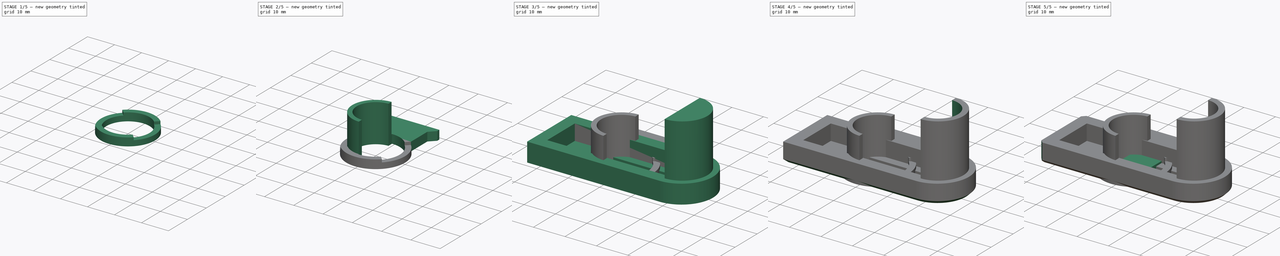
[diagram: build sequence overview — one tinted view per stage of 5, left to right]
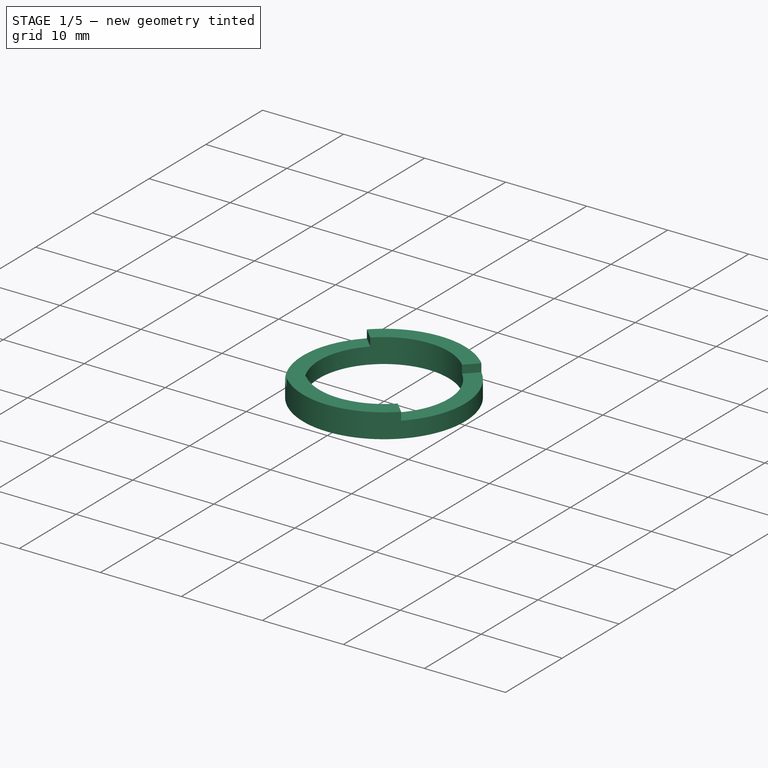
[diagram: stage 1 of 5 — iso view after this stage's code; geometry added in this stage tinted green]
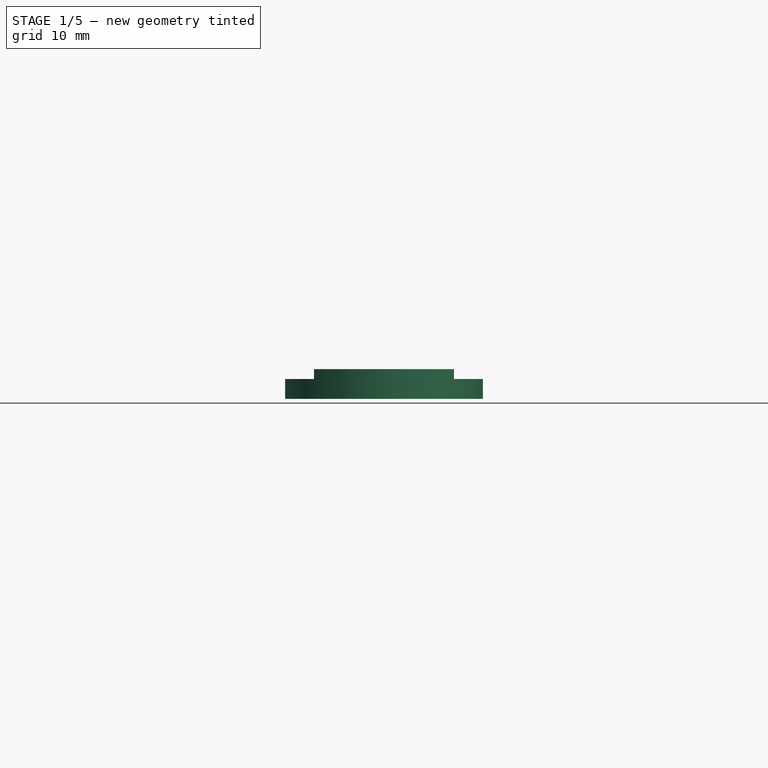
[diagram: stage 1 of 5 — front view after this stage's code; geometry added in this stage tinted green]
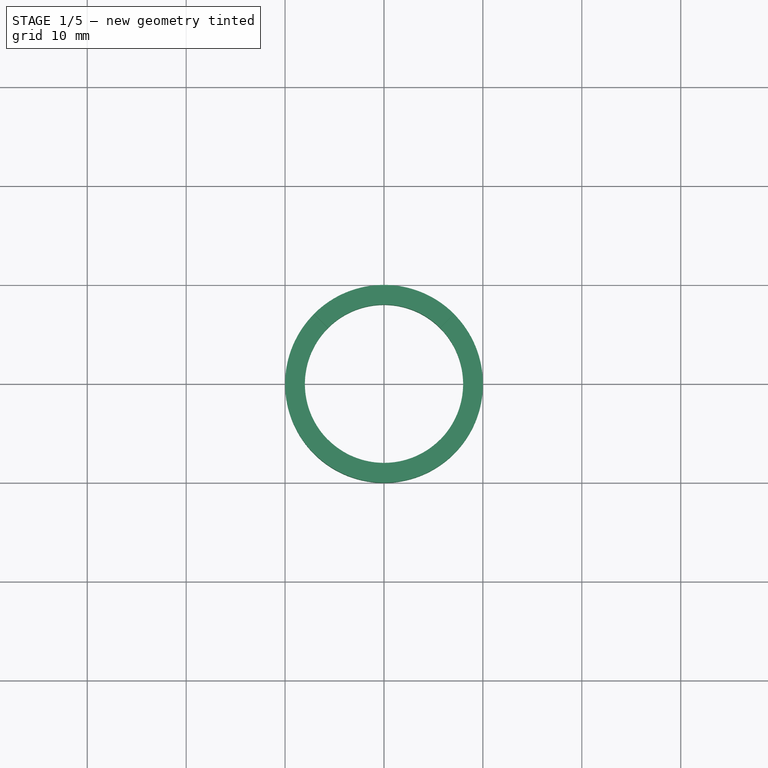
[diagram: stage 1 of 5 — top view after this stage's code; geometry added in this stage tinted green]
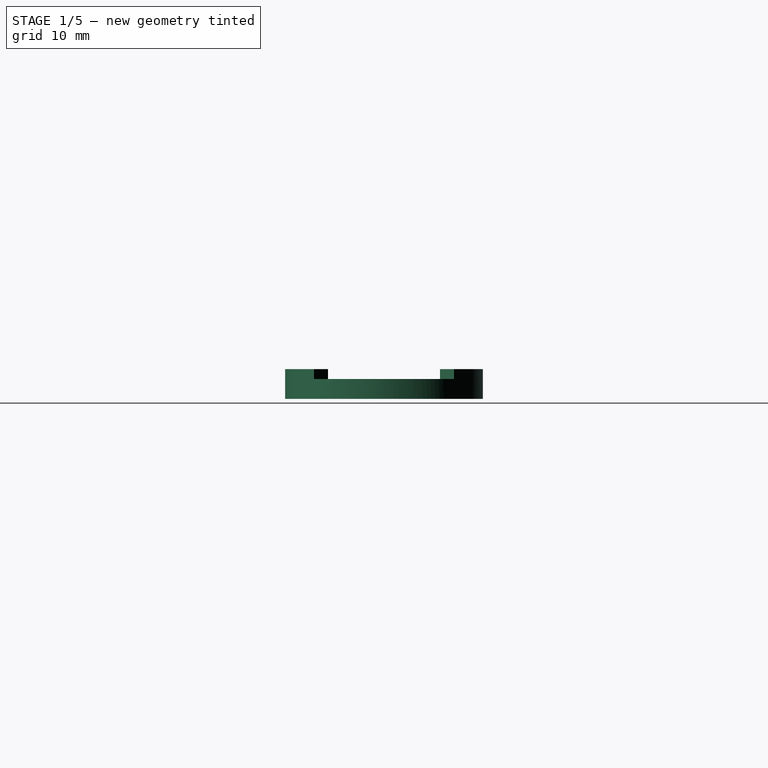
[diagram: stage 1 of 5 — right view after this stage's code; geometry added in this stage tinted green]
FCSTD DOCUMENT  (FreeCAD 1.1R38728 (Git))
Label: AuxPower1U OLED
License: All rights reserved
LicenseURL: https://en.wikipedia.org/wiki/All_rights_reserved
objects: Sketcher::SketchObject×13, PartDesign::Pad×7, PartDesign::Pocket×6, PartDesign::Body×4, PartDesign::Chamfer×3
note: 78 computed .brp shape members not serialized (recipe doc carries the construction recipe); baked Part::Feature solids carry a one-line shape summary decoded from their .brp

FEATURE [PartDesign::Body] Body001  label="Brace-Wide"
  AllowCompound = false
  Group = -> [Sketch002,Pad001]
  Origin = -> Origin001
  Placement = pos=(20,20,0) rot=(0,0,1;0rad)
  Tip = -> Pad001
FEATURE [Sketcher::SketchObject] Sketch003  label="RingBaseSketch"
  ArcFitTolerance = 0
  AttachmentSupport = -> [XY_Plane003]
  FullyConstrained = true
  MakeInternals = false
  MapMode = 5
  sketch-geometry (1):
    g0: Circle CenterX=0 CenterY=0 CenterZ=0 NormalX=0 NormalY=0 NormalZ=1 AngleXU=0 Radius=10
  constraints (2):
    c: Coincident(g0,g-1)
    c: Diameter(g0) = 20
FEATURE [PartDesign::Pad] Pad002  label="RingBasePad"
  Direction = (0,0,1)
  Length = 3
  Length2 = 10
  Profile = -> Sketch003
  ReferenceAxis = -> Sketch003 [N_Axis]
  Refine = true
  Suppressed = false
  Type = 0
FEATURE [Sketcher::SketchObject] Sketch004  label="RingClampCutoutSketch"
  ArcFitTolerance = 0
  AttachmentSupport = -> [Pad002]
  FullyConstrained = true
  MakeInternals = false
  MapMode = 5
  Placement = pos=(0,0,3) rot=(0,0,1;0rad)
  sketch-geometry (8):
    g0: LineSegment StartX=0 StartY=0 StartZ=0 EndX=7.07107 EndY=7.07107 EndZ=0
    g1: LineSegment StartX=0 StartY=0 StartZ=0 EndX=7.07107 EndY=-7.07107 EndZ=0
    g2: LineSegment [constr] StartX=0 StartY=0 StartZ=0 EndX=10 EndY=0 EndZ=0
    g3: ArcOfCircle CenterX=4.382e-13 CenterY=-4.405e-13 CenterZ=0 NormalX=0 NormalY=0 NormalZ=1 AngleXU=0 Radius=10 StartAngle=5.49779 EndAngle=7.06858
    g4: ArcOfCircle CenterX=0 CenterY=5.099e-13 CenterZ=0 NormalX=0 NormalY=0 NormalZ=1 AngleXU=0 Radius=10 StartAngle=2.35619 EndAngle=3.92699
    g5: LineSegment [constr] StartX=0 StartY=0 StartZ=0 EndX=-10 EndY=0 EndZ=0
    g6: LineSegment StartX=4.382e-13 StartY=-4.405e-13 StartZ=0 EndX=-7.07107 EndY=7.07107 EndZ=0
    g7: LineSegment StartX=0 StartY=0 StartZ=0 EndX=-7.07107 EndY=-7.07107 EndZ=0
  constraints (26):
    c: Angle(g0) = 0.785398
    c: Angle(g1) = -0.785398
    c: Horizontal(g0,g1)
    c: Horizontal(g1,g-1)
    c: Vertical(g0,g1)
    c: Distance(g1,g1) = 10
    c: Distance(g0,g0) = 10
    c: Vertical(g0,g-1)
    c: Distance(g2) = 10
    c: Coincident(g2,g0)
    c: PointOnObject(g2,g-1)
    c: Coincident(g3,g0)
    c: Coincident(g3,g1)
    c: PointOnObject(g2,g3)
    c: Coincident(g5,g1)
    c: PointOnObject(g5,g-1)
    c: Equal(g5,g2)
    c: Coincident(g6,g3)
    c: Equal(g6,g0)
    c: Angle(g6) = 2.35619
    c: Coincident(g4,g6)
    c: Coincident(g7,g0)
    c: Angle(g7) = -2.35619
    c: Equal(g7,g6)
    c: Coincident(g7,g4)
    c: Vertical(g4,g0)
FEATURE [PartDesign::Pocket] Pocket  label="RingClampCutoutPocket"
  BaseFeature = -> Pad002
  Direction = (0,0,-1)
  Length = 1
  Length2 = 5
  Profile = -> Sketch004
  ReferenceAxis = -> Sketch004 [N_Axis]
  Refine = true
  Suppressed = false
  Type = 0
FEATURE [Sketcher::SketchObject] Sketch005  label="RingHoleSketch"
  ArcFitTolerance = 0
  AttachmentSupport = -> [Pocket]
  FullyConstrained = true
  MakeInternals = false
  MapMode = 5
  Placement = pos=(0,0,3) rot=(0,0,1;0rad)
  sketch-geometry (1):
    g0: Circle CenterX=0 CenterY=0 CenterZ=0 NormalX=0 NormalY=0 NormalZ=1 AngleXU=0 Radius=8
  constraints (2):
    c: Coincident(g0,g-1)
    c: Diameter(g0) = 16
FEATURE [PartDesign::Pocket] Pocket001  label="RingHolePocket"
  BaseFeature = -> Pocket
  Direction = (0,0,-1)
  Length = 5
  Length2 = 5
  Profile = -> Sketch005
  ReferenceAxis = -> Sketch005 [N_Axis]
  Refine = true
  Suppressed = false
  Type = 0
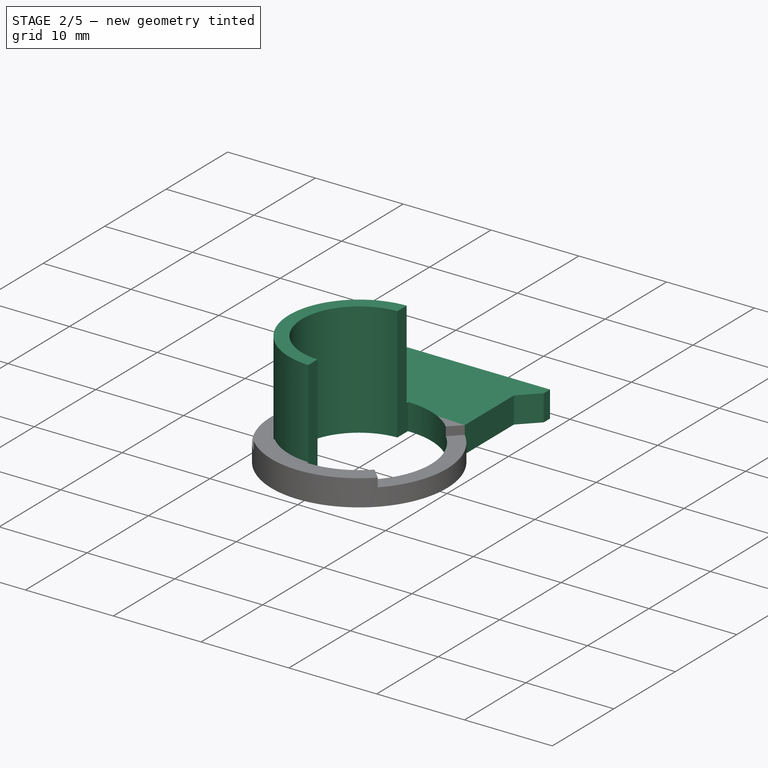
[diagram: stage 2 of 5 — iso view after this stage's code; geometry added in this stage tinted green]
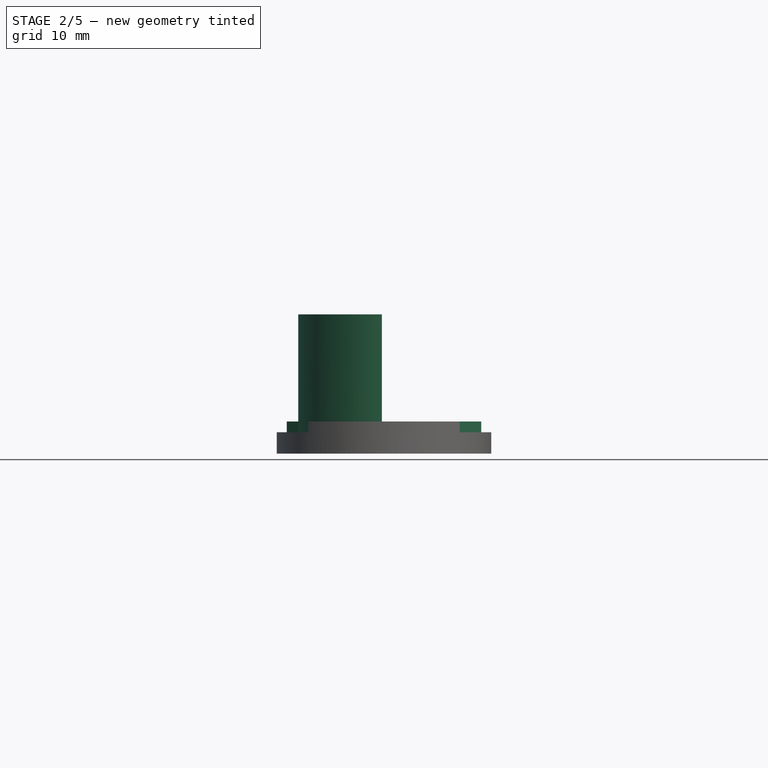
[diagram: stage 2 of 5 — front view after this stage's code; geometry added in this stage tinted green]
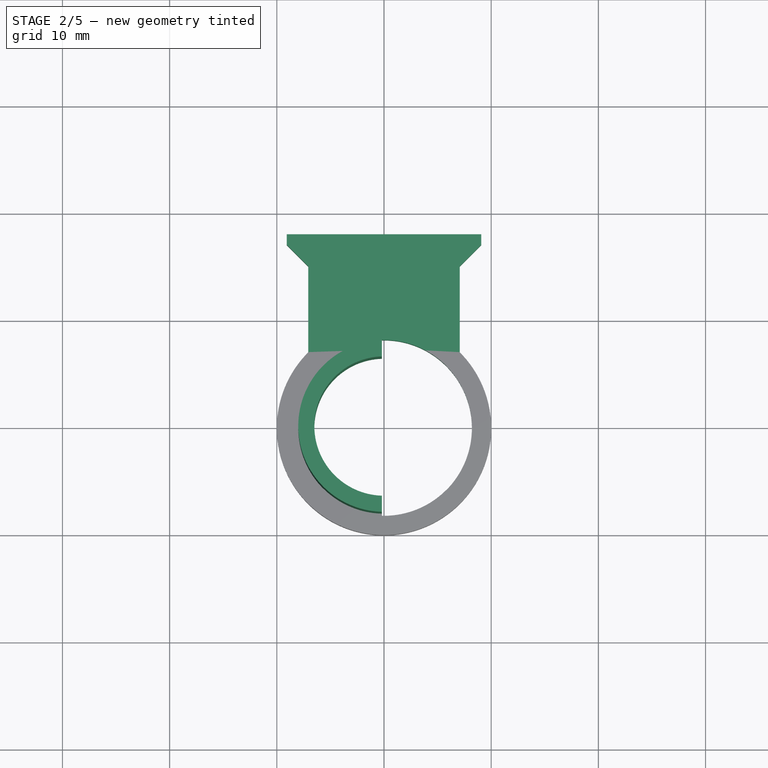
[diagram: stage 2 of 5 — top view after this stage's code; geometry added in this stage tinted green]
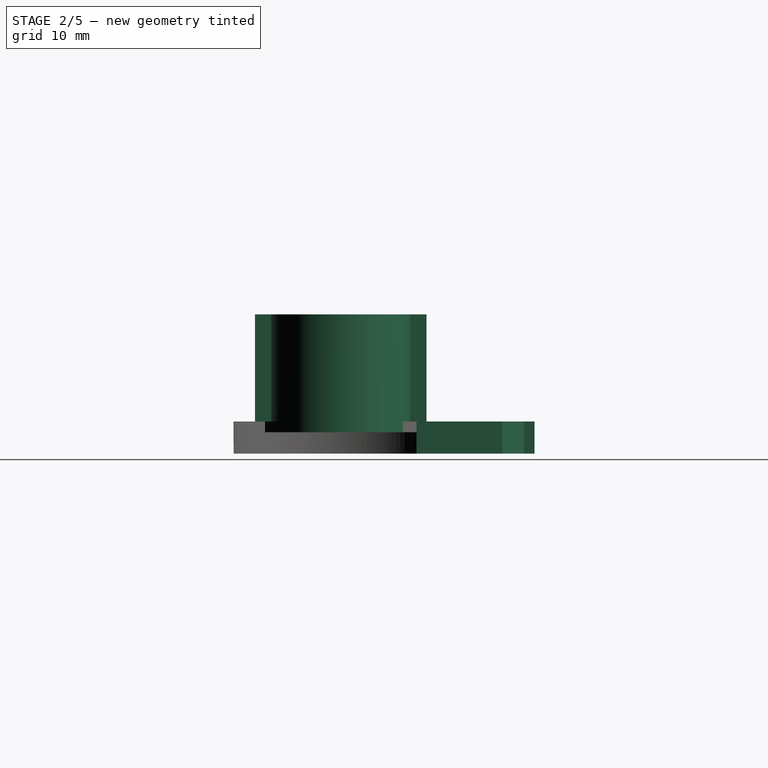
[diagram: stage 2 of 5 — right view after this stage's code; geometry added in this stage tinted green]
FEATURE [Sketcher::SketchObject] Sketch006  label="RingExtensionSketch"
  ArcFitTolerance = 0
  AttachmentSupport = -> [XY_Plane003]
  FullyConstrained = true
  MakeInternals = false
  MapMode = 5
  sketch-geometry (8):
    g0: LineSegment [constr] StartX=-9e-16 StartY=0 StartZ=0 EndX=-6.5 EndY=0 EndZ=0
    g1: LineSegment StartX=-9e-16 StartY=6.5 StartZ=0 EndX=-9e-16 EndY=8 EndZ=0
    g2: LineSegment StartX=-9e-16 StartY=-6.5 StartZ=0 EndX=-9e-16 EndY=-8 EndZ=0
    g3: LineSegment [constr] StartX=-6.5 StartY=0 StartZ=0 EndX=-8 EndY=0 EndZ=0
    g4: LineSegment [constr] StartX=-9e-16 StartY=0 StartZ=0 EndX=-9e-16 EndY=-6.5 EndZ=0
    g5: LineSegment [constr] StartX=-9e-16 StartY=6.5 StartZ=0 EndX=-9e-16 EndY=0 EndZ=0
    g6: ArcOfCircle CenterX=3e-16 CenterY=1e-16 CenterZ=0 NormalX=0 NormalY=0 NormalZ=1 AngleXU=0 Radius=6.5 StartAngle=1.5708 EndAngle=4.71239
    g7: ArcOfCircle CenterX=-2.14e-13 CenterY=-2.129e-13 CenterZ=0 NormalX=0 NormalY=0 NormalZ=1 AngleXU=0 Radius=8 StartAngle=1.5708 EndAngle=4.71239
  constraints (26):
    c: Horizontal(g0)
    c: Distance(g2) = 1.5
    c: PointOnObject(g2,g-2)
    c: Vertical(g2)
    c: DistanceX(g0,g0) = 6.5
    c: DistanceX(g3,g3) = 1.5
    c: Coincident(g4,g0)
    c: Coincident(g4,g2)
    c: Vertical(g4)
    c: DistanceY(g4,g4) = 6.5
    c: DistanceY(g1,g1) = 1.5
    c: Horizontal(g3)
    c: Vertical(g0,g3)
    c: Horizontal(g4,g-1)
    c: Distance(g5) = 6.5
    c: Coincident(g5,g1)
    c: Coincident(g5,g0)
    c: Vertical(g5)
    c: Vertical(g1,g1)
    c: Horizontal(g0,g3)
    c: Coincident(g6,g2)
    c: Coincident(g6,g1)
    c: PointOnObject(g3,g6)
    c: Coincident(g7,g1)
    c: Coincident(g7,g2)
    c: PointOnObject(g3,g7)
FEATURE [PartDesign::Pad] Pad003  label="RingExtensionPad"
  BaseFeature = -> Pocket001
  Direction = (0,0,1)
  Length = 13
  Length2 = 10
  Profile = -> Sketch006
  ReferenceAxis = -> Sketch006 [N_Axis]
  Refine = true
  Suppressed = false
  Type = 0
FEATURE [Sketcher::SketchObject] Sketch007  label="RingTolerancesSketch"
  ArcFitTolerance = 0
  AttachmentSupport = -> [Pad003]
  FullyConstrained = true
  MakeInternals = false
  MapMode = 5
  Placement = pos=(0,0,13) rot=(0,0,1;0rad)
  sketch-geometry (6):
    g0: LineSegment [constr] StartX=1.8e-15 StartY=8.2 StartZ=0 EndX=1.8e-15 EndY=-8.2 EndZ=0
    g1: LineSegment [constr] StartX=0 StartY=0 StartZ=0 EndX=8.2 EndY=0 EndZ=0
    g2: ArcOfCircle CenterX=-7e-16 CenterY=-6e-16 CenterZ=0 NormalX=0 NormalY=0 NormalZ=1 AngleXU=0 Radius=8.2 StartAngle=4.71239 EndAngle=7.85398
    g3: LineSegment StartX=1.8e-15 StartY=8.2 StartZ=0 EndX=-0.2 EndY=8.2 EndZ=0
    g4: LineSegment StartX=1.8e-15 StartY=-8.2 StartZ=0 EndX=-0.2 EndY=-8.2 EndZ=0
    g5: LineSegment StartX=-0.2 StartY=-8.2 StartZ=0 EndX=-0.2 EndY=8.2 EndZ=0
  constraints (17):
    c: Distance(g0) = 16.4
    c: Vertical(g0)
    c: Symmetric(g0,g0,g-1)
    c: Distance(g1) = 8.2
    c: Coincident(g1,g-1)
    c: PointOnObject(g1,g-1)
    c: Coincident(g2,g0)
    c: Coincident(g2,g0)
    c: PointOnObject(g1,g2)
    c: Distance(g3) = 0.2
    c: Coincident(g3,g0)
    c: Horizontal(g3)
    c: Distance(g4) = 0.2
    c: Coincident(g4,g0)
    c: Horizontal(g4)
    c: Coincident(g5,g4)
    c: Coincident(g5,g3)
FEATURE [PartDesign::Pocket] Pocket002  label="RingTolerancesPocket"
  BaseFeature = -> Pad003
  Direction = (0,0,-1)
  Length = 20
  Length2 = 5
  Profile = -> Sketch007
  ReferenceAxis = -> Sketch007 [N_Axis]
  Refine = true
  Suppressed = false
  Type = 0
FEATURE [PartDesign::Body] Body002  label="Body"
  AllowCompound = false
  Group = -> [Sketch008,Sketch009,Pad004,Pocket003,Sketch010,Pocket004,Sketch011,Pad005,Sketch012,Pocket005,Chamfer,Chamfer001,Chamfer002]
  Origin = -> Origin002
  Tip = -> Chamfer002
FEATURE [Sketcher::SketchObject] Sketch013  label="RingStopperSketch"
  ArcFitTolerance = 1e-06
  AttachmentSupport = -> [XY_Plane003]
  ExternalGeometry = -> [Pad003]
  FullyConstrained = true
  MakeInternals = false
  MapMode = 5
  sketch-geometry (13):
    g0: LineSegment [constr] StartX=-7.07107 StartY=7.07107 StartZ=0 EndX=7.07107 EndY=7.07107 EndZ=0
    g1: LineSegment StartX=-7.07107 StartY=7.07107 StartZ=0 EndX=-7.07107 EndY=15.0711 EndZ=0
    g2: LineSegment StartX=7.07107 StartY=7.07107 StartZ=0 EndX=7.07107 EndY=15.0711 EndZ=0
    g3: LineSegment [constr] StartX=-7.07107 StartY=15.0711 StartZ=0 EndX=-7.07107 EndY=18.0711 EndZ=0
    g4: LineSegment [constr] StartX=7.07107 StartY=15.0711 StartZ=0 EndX=7.07107 EndY=18.0711 EndZ=0
    g5: LineSegment [constr] StartX=-7.07107 StartY=18.0711 StartZ=0 EndX=-9.07107 EndY=18.0711 EndZ=0
    g6: LineSegment StartX=-9.07107 StartY=18.0711 StartZ=0 EndX=-9.07107 EndY=17.0711 EndZ=0
    g7: LineSegment [constr] StartX=7.07107 StartY=18.0711 StartZ=0 EndX=9.07107 EndY=18.0711 EndZ=0
    g8: LineSegment StartX=9.07107 StartY=18.0711 StartZ=0 EndX=9.07107 EndY=17.0711 EndZ=0
    g9: LineSegment StartX=-7.07107 StartY=15.0711 StartZ=0 EndX=-9.07107 EndY=17.0711 EndZ=0
    g10: LineSegment StartX=-9.07107 StartY=18.0711 StartZ=0 EndX=9.07107 EndY=18.0711 EndZ=0
    g11: LineSegment StartX=9.07107 StartY=17.0711 StartZ=0 EndX=7.07107 EndY=15.0711 EndZ=0
    g12: ArcOfCircle CenterX=0 CenterY=0 CenterZ=0 NormalX=0 NormalY=0 NormalZ=1 AngleXU=0 Radius=10 StartAngle=0.785398 EndAngle=2.35619
  constraints (35):
    c: Coincident(g0,g-4)
    c: Coincident(g0,g-3)
    c: Coincident(g1,g0)
    c: Vertical(g1)
    c: DistanceY(g1,g1) = 8
    c: Coincident(g2,g0)
    c: Vertical(g2)
    c: Equal(g2,g1)
    c: Distance(g3) = 3
    c: Coincident(g3,g1)
    c: Vertical(g3)
    c: Coincident(g4,g2)
    c: Vertical(g4)
    c: Equal(g4,g3)
    c: Distance(g5) = 2
    c: Coincident(g5,g3)
    c: Horizontal(g5)
    c: Distance(g6) = 1
    c: Coincident(g6,g5)
    c: Vertical(g6)
    c: Coincident(g7,g4)
    c: Horizontal(g7)
    c: Coincident(g8,g7)
    c: Vertical(g8)
    c: Equal(g8,g6)
    c: Equal(g7,g5)
    c: Coincident(g9,g1)
    c: Coincident(g9,g6)
    c: Coincident(g10,g5)
    c: Coincident(g10,g7)
    c: Coincident(g11,g8)
    c: Coincident(g11,g2)
    c: Coincident(g12,g-1)
    c: Coincident(g12,g0)
    c: Horizontal(g12,g0)
FEATURE [PartDesign::Pad] Pad006  label="RingStopperPad"
  BaseFeature = -> Pocket002
  Direction = (0,0,1)
  Length = 3
  Length2 = 10
  Profile = -> Sketch013
  ReferenceAxis = -> Sketch013 [N_Axis]
  Refine = true
  Suppressed = false
  Type = 0
FEATURE [PartDesign::Body] Body003  label="Ring"
  AllowCompound = false
  Group = -> [Sketch003,Pad002,Sketch004,Pocket,Sketch005,Pocket001,Sketch006,Pad003,Sketch007,Pocket002,Sketch013,Pad006]
  Origin = -> Origin003
  Placement = pos=(-20,23,0) rot=(0,0,1;0rad)
  Tip = -> Pad006
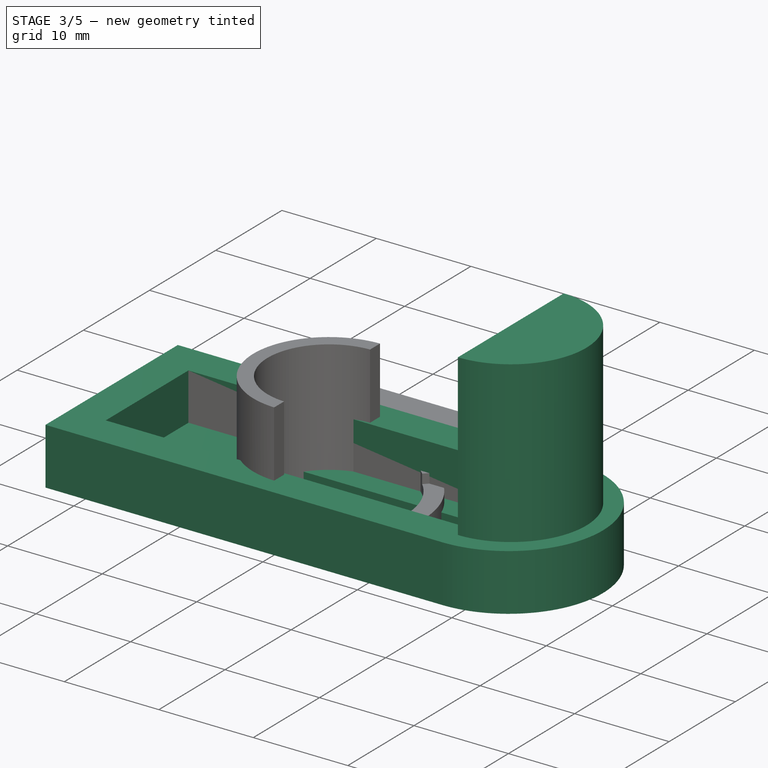
[diagram: stage 3 of 5 — iso view after this stage's code; geometry added in this stage tinted green]
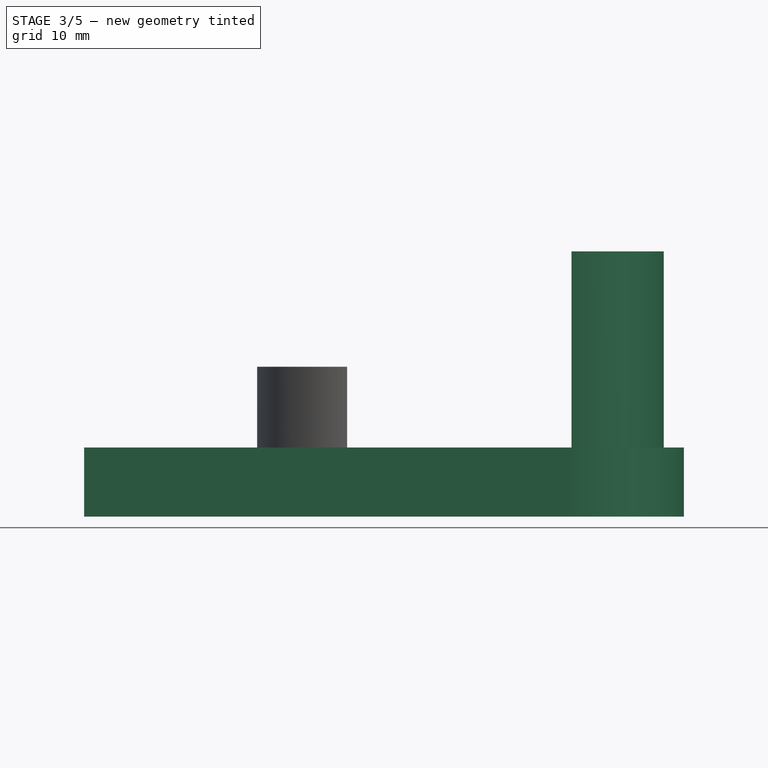
[diagram: stage 3 of 5 — front view after this stage's code; geometry added in this stage tinted green]
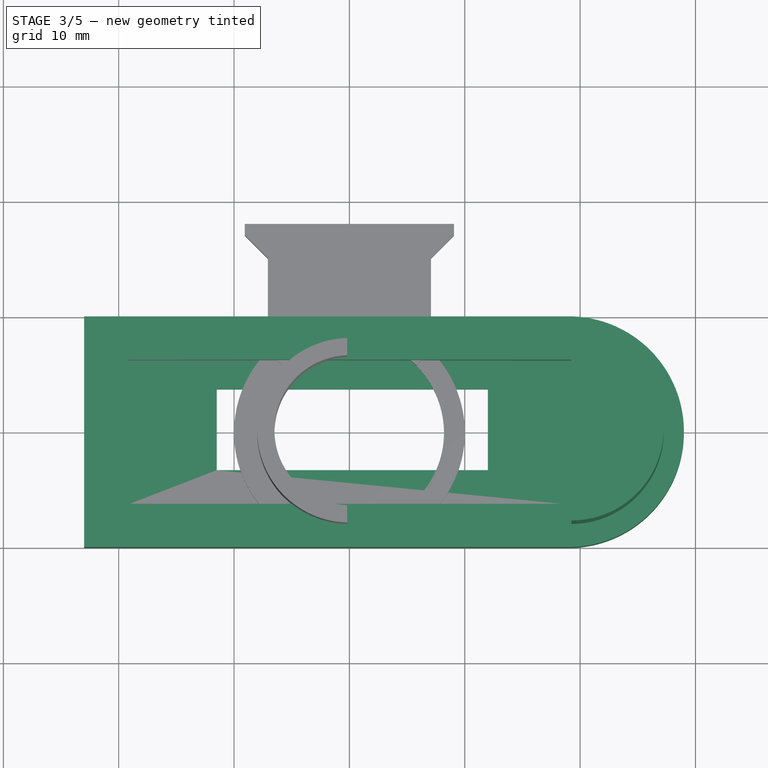
[diagram: stage 3 of 5 — top view after this stage's code; geometry added in this stage tinted green]
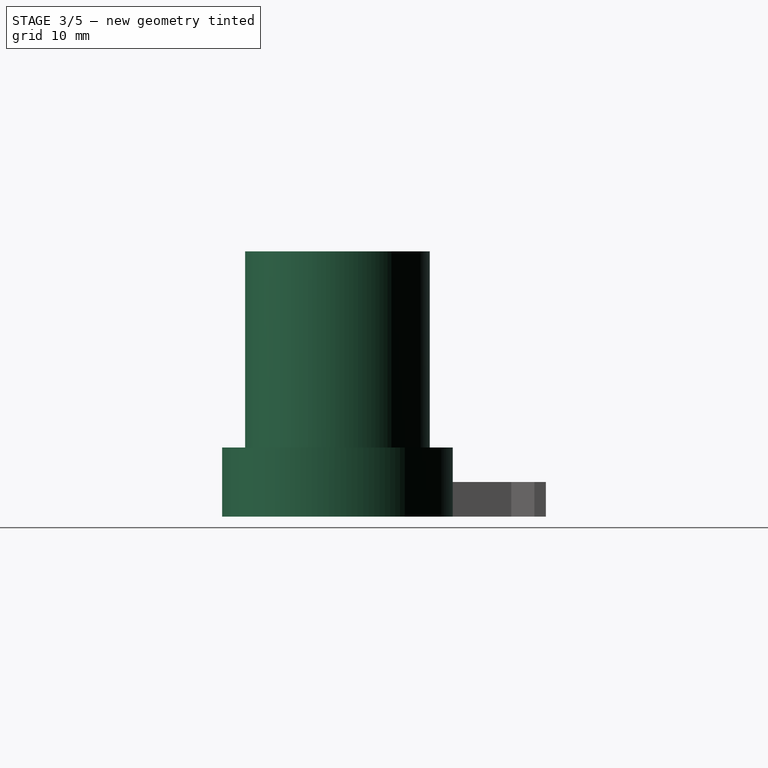
[diagram: stage 3 of 5 — right view after this stage's code; geometry added in this stage tinted green]
FEATURE [Sketcher::SketchObject] Sketch009  label="Outer"
  ArcFitTolerance = 0
  AttachmentSupport = -> [XY_Plane002]
  FullyConstrained = true
  MakeInternals = false
  MapMode = 5
  sketch-geometry (13):
    g0: LineSegment [constr] StartX=-23 StartY=10 StartZ=0 EndX=-23 EndY=-10 EndZ=0
    g1: LineSegment [constr] StartX=-23 StartY=-10 StartZ=0 EndX=23 EndY=-10 EndZ=0
    g2: LineSegment [constr] StartX=23 StartY=-10 StartZ=0 EndX=23 EndY=10 EndZ=0
    g3: LineSegment [constr] StartX=23 StartY=10 StartZ=0 EndX=-23 EndY=10 EndZ=0
    g4: LineSegment [constr] StartX=-23 StartY=10 StartZ=0 EndX=19 EndY=10 EndZ=0
    g5: LineSegment StartX=-23 StartY=10 StartZ=0 EndX=-23 EndY=-10 EndZ=0
    g6: LineSegment [constr] StartX=-23 StartY=-10 StartZ=0 EndX=19 EndY=-10 EndZ=0
    g7: LineSegment [constr] StartX=19 StartY=10 StartZ=0 EndX=19 EndY=-10 EndZ=0
    g8: LineSegment StartX=-23 StartY=10 StartZ=0 EndX=19 EndY=10 EndZ=0
    g9: LineSegment StartX=-23 StartY=-10 StartZ=0 EndX=19 EndY=-10 EndZ=0
    g10: LineSegment [constr] StartX=19 StartY=10 StartZ=0 EndX=19 EndY=-10 EndZ=0
    g11: LineSegment [constr] StartX=19 StartY=-3.353e-13 StartZ=0 EndX=29 EndY=0 EndZ=0
    g12: ArcOfCircle CenterX=19 CenterY=-3.343e-13 CenterZ=0 NormalX=0 NormalY=0 NormalZ=1 AngleXU=0 Radius=10 StartAngle=4.71239 EndAngle=7.85398
  constraints (35):
    c: Coincident(g0,g1)
    c: Coincident(g1,g2)
    c: Coincident(g2,g3)
    c: Coincident(g3,g0)
    c: Vertical(g0)
    c: Vertical(g2)
    c: Horizontal(g1)
    c: Horizontal(g3)
    c: DistanceX(g3,g3) = 46
    c: DistanceY(g2,g2) = 20
    c: Symmetric(g2,g0,g-1)
    c: Distance(g4) = 42
    c: Coincident(g4,g0)
    c: PointOnObject(g4,g3)
    c: Coincident(g5,g0)
    c: Coincident(g5,g0)
    c: Distance(g6) = 42
    c: Coincident(g6,g0)
    c: Horizontal(g6)
    c: Coincident(g7,g4)
    c: Coincident(g7,g6)
    c: Distance(g8) = 42
    c: Coincident(g8,g0)
    c: Horizontal(g8)
    c: Coincident(g9,g0)
    c: PointOnObject(g9,g7)
    c: Horizontal(g9)
    c: Coincident(g10,g8)
    c: Coincident(g10,g9)
    c: Distance(g11) = 10
    c: Symmetric(g7,g7,g11)
    c: PointOnObject(g11,g-1)
    c: Coincident(g12,g4)
    c: Coincident(g12,g6)
    c: PointOnObject(g11,g12)
FEATURE [PartDesign::Pad] Pad004  label="Pad-Outer"
  Direction = (0,0,1)
  Length = 6
  Length2 = 10
  Profile = -> Sketch009
  ReferenceAxis = -> Sketch009 [N_Axis]
  Refine = true
  Suppressed = false
  Type = 0
FEATURE [Sketcher::SketchObject] Sketch008  label="PCB"
  ArcFitTolerance = 0
  AttachmentSupport = -> [Pad004]
  FullyConstrained = true
  MakeInternals = false
  MapMode = 5
  Placement = pos=(0,0,6) rot=(0,0,1;0rad)
  sketch-geometry (4):
    g0: LineSegment StartX=-19.25 StartY=6.25 StartZ=0 EndX=-19.25 EndY=-6.25 EndZ=0
    g1: LineSegment StartX=-19.25 StartY=-6.25 StartZ=0 EndX=19.25 EndY=-6.25 EndZ=0
    g2: LineSegment StartX=19.25 StartY=-6.25 StartZ=0 EndX=19.25 EndY=6.25 EndZ=0
    g3: LineSegment StartX=19.25 StartY=6.25 StartZ=0 EndX=-19.25 EndY=6.25 EndZ=0
  constraints (11):
    c: Coincident(g0,g1)
    c: Coincident(g1,g2)
    c: Coincident(g2,g3)
    c: Coincident(g3,g0)
    c: Vertical(g0)
    c: Vertical(g2)
    c: Horizontal(g1)
    c: Horizontal(g3)
    c: Distance(g0,g2) = 38.5
    c: Distance(g1,g3) = 12.5
    c: Symmetric(g2,g0,g-1)
FEATURE [PartDesign::Pocket] Pocket003  label="Pocket-PCB"
  BaseFeature = -> Pad004
  Direction = (0,0,-1)
  Length = 5
  Length2 = 5
  Profile = -> Sketch008
  ReferenceAxis = -> Sketch008 [N_Axis]
  Refine = true
  Suppressed = false
  Type = 0
FEATURE [Sketcher::SketchObject] Sketch010  label="Display"
  ArcFitTolerance = 0
  AttachmentSupport = -> [Pocket003]
  FullyConstrained = true
  MakeInternals = false
  MapMode = 5
  Placement = pos=(0,0,1) rot=(0,0,1;0rad)
  sketch-geometry (4):
    g0: LineSegment StartX=-11.5 StartY=3.75 StartZ=0 EndX=-11.5 EndY=-3.25 EndZ=0
    g1: LineSegment StartX=-11.5 StartY=-3.25 StartZ=0 EndX=12 EndY=-3.25 EndZ=0
    g2: LineSegment StartX=12 StartY=-3.25 StartZ=0 EndX=12 EndY=3.75 EndZ=0
    g3: LineSegment StartX=12 StartY=3.75 StartZ=0 EndX=-11.5 EndY=3.75 EndZ=0
  constraints (12):
    c: Coincident(g0,g1)
    c: Coincident(g1,g2)
    c: Coincident(g2,g3)
    c: Coincident(g3,g0)
    c: Vertical(g0)
    c: Vertical(g2)
    c: Horizontal(g1)
    c: Horizontal(g3)
    c: Distance(g0,g2) = 23.5
    c: Distance(g1,g3) = 7
    c: DistanceX(g-1,g2) = 12
    c: DistanceY(g-1,g2) = 3.75
FEATURE [PartDesign::Pocket] Pocket004  label="Pocket-Display"
  BaseFeature = -> Pocket003
  Direction = (0,0,-1)
  Length = 1
  Length2 = 5
  Profile = -> Sketch010
  ReferenceAxis = -> Sketch010 [N_Axis]
  Refine = true
  Suppressed = false
  Type = 0
FEATURE [Sketcher::SketchObject] Sketch011  label="Grommet"
  ArcFitTolerance = 0
  AttachmentSupport = -> [Pocket004]
  FullyConstrained = true
  MakeInternals = false
  MapMode = 5
  Placement = pos=(0,0,6) rot=(0,0,1;0rad)
  sketch-geometry (7):
    g0: LineSegment [constr] StartX=-19.25 StartY=8 StartZ=0 EndX=-19.25 EndY=-8 EndZ=0
    g1: LineSegment [constr] StartX=-19.25 StartY=-8 StartZ=0 EndX=19.25 EndY=-8 EndZ=0
    g2: LineSegment [constr] StartX=19.25 StartY=-8 StartZ=0 EndX=19.25 EndY=8 EndZ=0
    g3: LineSegment [constr] StartX=19.25 StartY=8 StartZ=0 EndX=-19.25 EndY=8 EndZ=0
    g4: LineSegment [constr] StartX=19.25 StartY=-1e-15 StartZ=0 EndX=27.25 EndY=-1e-15 EndZ=0
    g5: LineSegment StartX=19.25 StartY=8 StartZ=0 EndX=19.25 EndY=-8 EndZ=0
    g6: ArcOfCircle CenterX=19.25 CenterY=-8e-16 CenterZ=0 NormalX=0 NormalY=0 NormalZ=1 AngleXU=0 Radius=8 StartAngle=4.71239 EndAngle=7.85398
  constraints (19):
    c: Coincident(g0,g1)
    c: Coincident(g1,g2)
    c: Coincident(g2,g3)
    c: Coincident(g3,g0)
    c: Vertical(g0)
    c: Vertical(g2)
    c: Horizontal(g1)
    c: Horizontal(g3)
    c: Distance(g0,g2) = 38.5
    c: Distance(g1,g3) = 16
    c: Symmetric(g2,g0,g-1)
    c: Distance(g4) = 8
    c: Symmetric(g2,g2,g4)
    c: Horizontal(g4)
    c: Coincident(g5,g2)
    c: Coincident(g5,g1)
    c: Coincident(g6,g2)
    c: Coincident(g6,g1)
    c: PointOnObject(g4,g6)
FEATURE [PartDesign::Pad] Pad005  label="Pad-Grommet"
  BaseFeature = -> Pocket004
  Direction = (0,0,1)
  Length = 17
  Length2 = 10
  Profile = -> Sketch011
  ReferenceAxis = -> Sketch011 [N_Axis]
  Refine = true
  Suppressed = false
  Type = 0
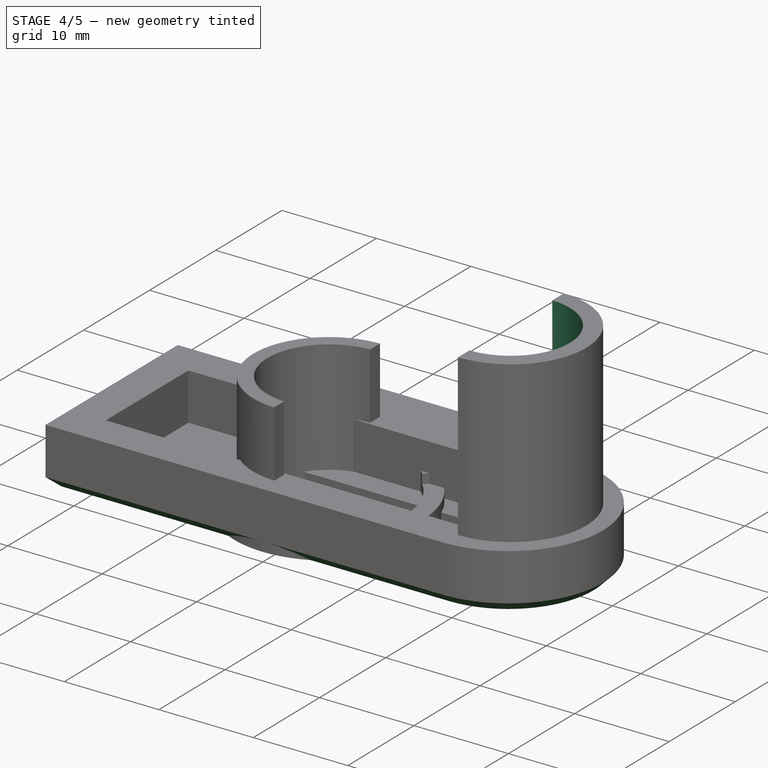
[diagram: stage 4 of 5 — iso view after this stage's code; geometry added in this stage tinted green]
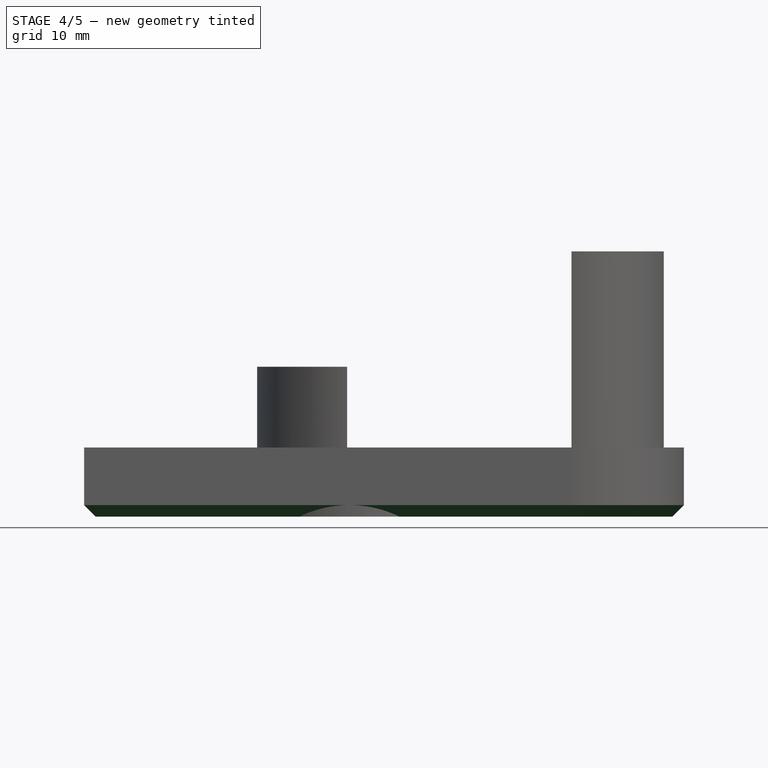
[diagram: stage 4 of 5 — front view after this stage's code; geometry added in this stage tinted green]
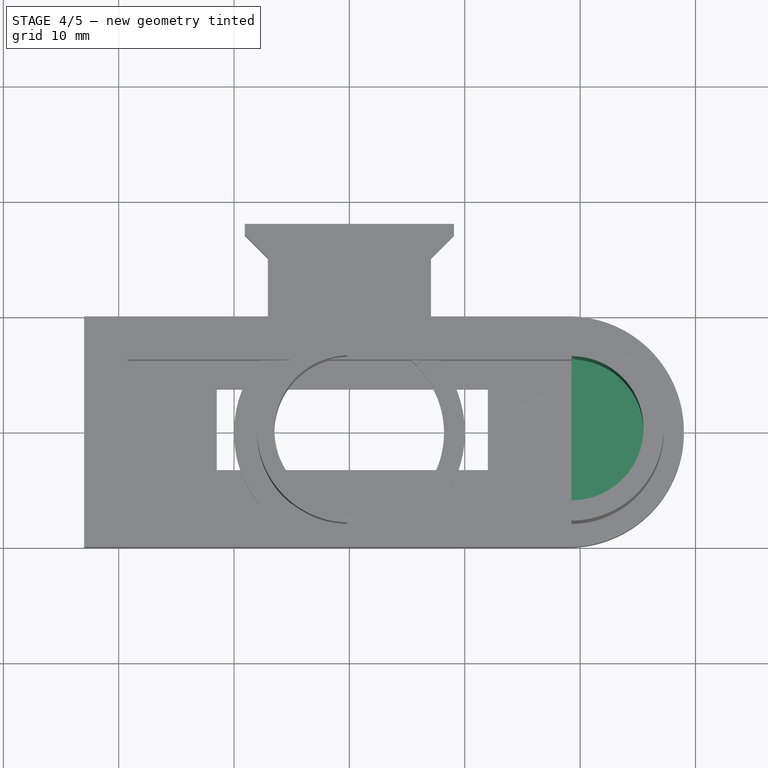
[diagram: stage 4 of 5 — top view after this stage's code; geometry added in this stage tinted green]
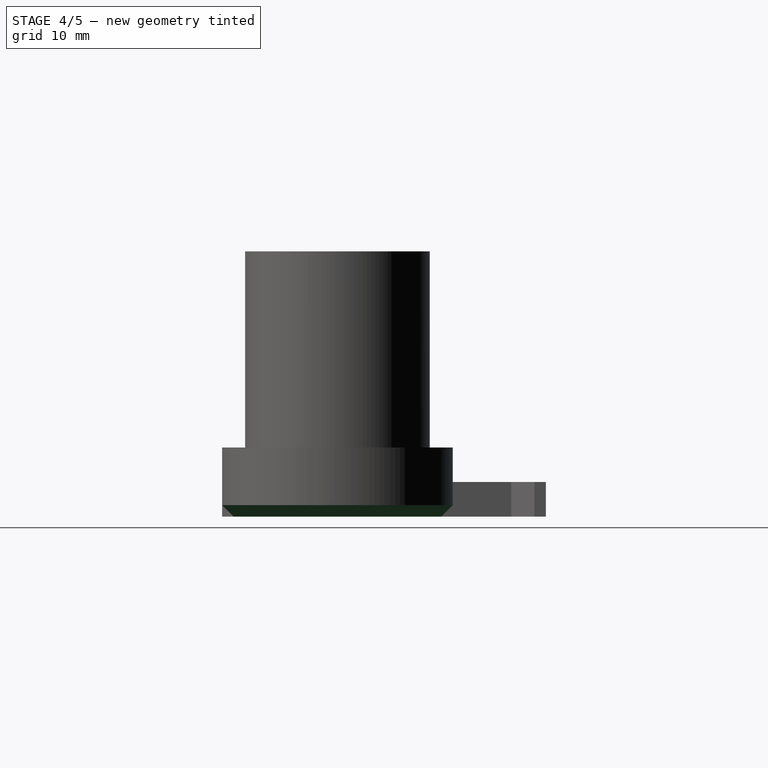
[diagram: stage 4 of 5 — right view after this stage's code; geometry added in this stage tinted green]
FEATURE [Sketcher::SketchObject] Sketch012  label="GrommetHole"
  ArcFitTolerance = 0
  AttachmentSupport = -> [Pad005]
  FullyConstrained = true
  MakeInternals = false
  MapMode = 5
  Placement = pos=(0,0,23) rot=(0,0,1;0rad)
  sketch-geometry (6):
    g0: LineSegment [constr] StartX=-19.25 StartY=6.25 StartZ=0 EndX=-19.25 EndY=-6.25 EndZ=0
    g1: LineSegment [constr] StartX=-19.25 StartY=-6.25 StartZ=0 EndX=19.25 EndY=-6.25 EndZ=0
    g2: LineSegment StartX=19.25 StartY=-6.25 StartZ=0 EndX=19.25 EndY=6.25 EndZ=0
    g3: LineSegment [constr] StartX=19.25 StartY=6.25 StartZ=0 EndX=-19.25 EndY=6.25 EndZ=0
    g4: LineSegment [constr] StartX=19.25 StartY=0 StartZ=0 EndX=25.5 EndY=0 EndZ=0
    g5: ArcOfCircle CenterX=19.25 CenterY=-2.092e-13 CenterZ=0 NormalX=0 NormalY=0 NormalZ=1 AngleXU=0 Radius=6.25 StartAngle=4.71239 EndAngle=7.85398
  constraints (17):
    c: Coincident(g0,g1)
    c: Coincident(g1,g2)
    c: Coincident(g2,g3)
    c: Coincident(g3,g0)
    c: Vertical(g0)
    c: Vertical(g2)
    c: Horizontal(g1)
    c: Horizontal(g3)
    c: Distance(g0,g2) = 38.5
    c: Distance(g1,g3) = 12.5
    c: Symmetric(g2,g0,g-1)
    c: Distance(g4) = 6.25
    c: Symmetric(g2,g2,g4)
    c: PointOnObject(g4,g-1)
    c: Coincident(g5,g2)
    c: Coincident(g5,g1)
    c: PointOnObject(g4,g5)
FEATURE [PartDesign::Pocket] Pocket005  label="Pocket-Grommet"
  BaseFeature = -> Pad005
  Direction = (0,0,-1)
  Length = 17
  Length2 = 5
  Profile = -> Sketch012
  ReferenceAxis = -> Sketch012 [N_Axis]
  Refine = true
  Suppressed = false
  Type = 0
FEATURE [PartDesign::Chamfer] Chamfer
  Angle = 45
  Base = -> Pocket005 [Edge9]
  BaseFeature = -> Pocket005
  ChamferType = 0
  FlipDirection = false
  Refine = true
  Size = 1
  Size2 = 1
  SupportTransform = false
  Suppressed = false
  UseAllEdges = false
FEATURE [PartDesign::Chamfer] Chamfer001
  Angle = 45
  Base = -> Chamfer [Edge4]
  BaseFeature = -> Chamfer
  ChamferType = 0
  FlipDirection = false
  Refine = true
  Size = 1
  Size2 = 1
  SupportTransform = false
  Suppressed = false
  UseAllEdges = false
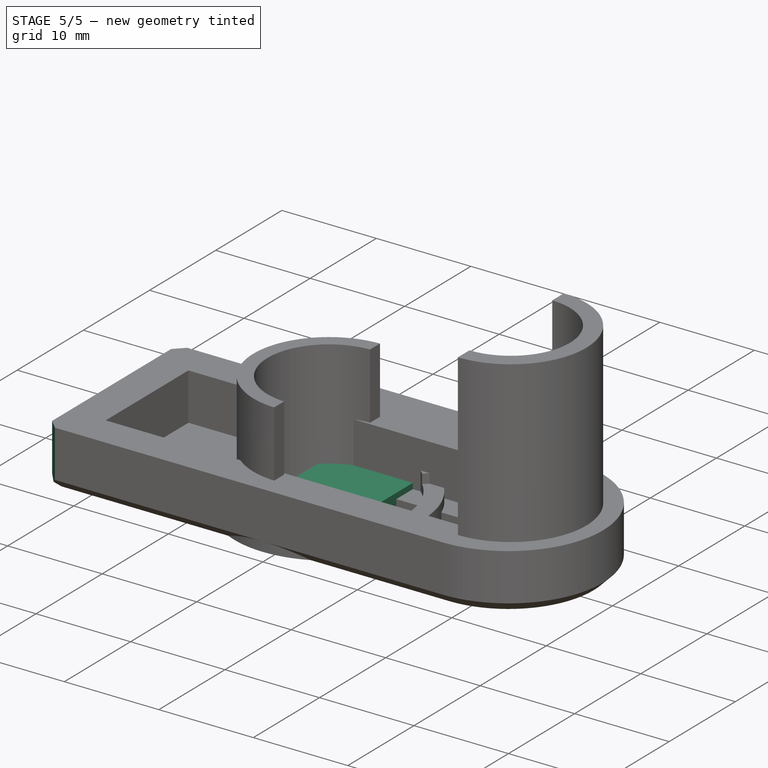
[diagram: stage 5 of 5 — iso view after this stage's code; geometry added in this stage tinted green]
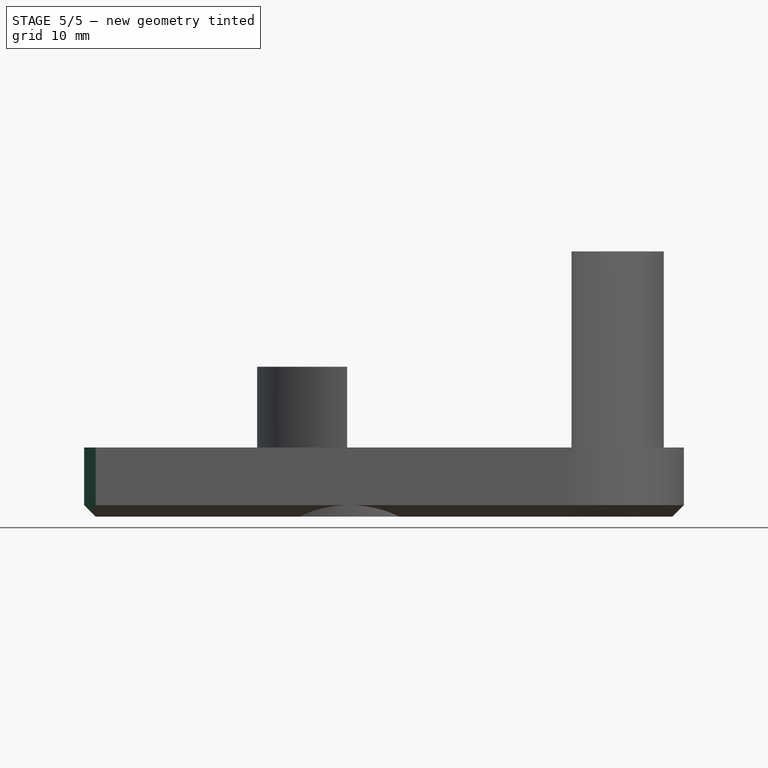
[diagram: stage 5 of 5 — front view after this stage's code; geometry added in this stage tinted green]
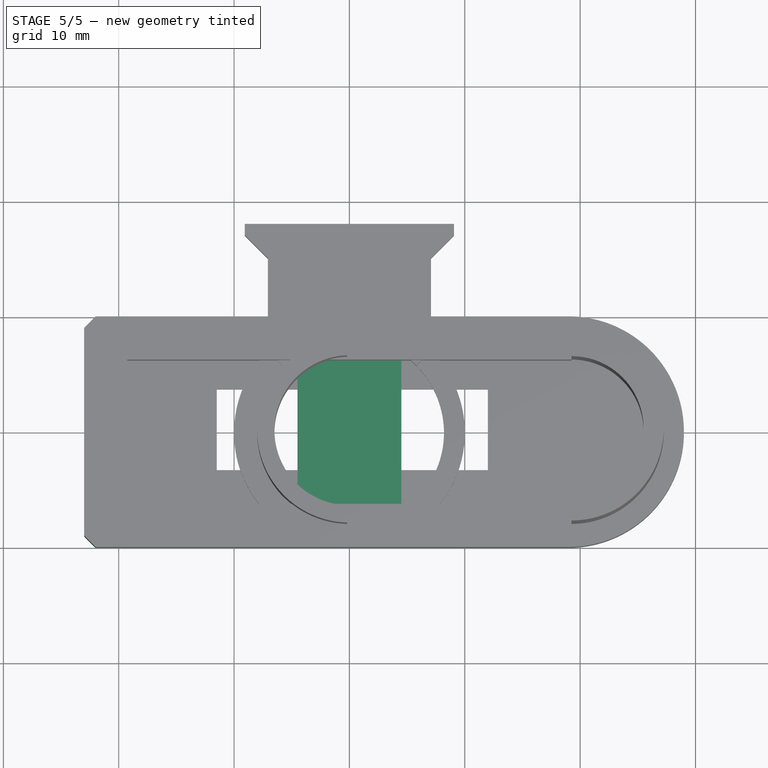
[diagram: stage 5 of 5 — top view after this stage's code; geometry added in this stage tinted green]
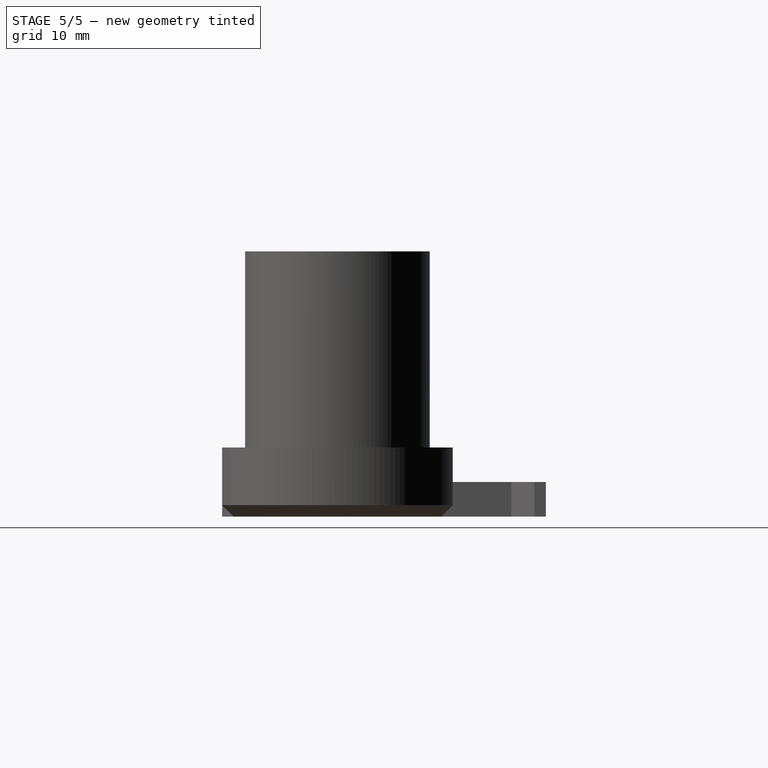
[diagram: stage 5 of 5 — right view after this stage's code; geometry added in this stage tinted green]
FEATURE [Sketcher::SketchObject] Sketch
  ArcFitTolerance = 0
  AttachmentSupport = -> [XY_Plane]
  FullyConstrained = true
  MakeInternals = false
  MapMode = 5
  sketch-geometry (4):
    g0: LineSegment StartX=-1.5 StartY=6.25 StartZ=0 EndX=-1.5 EndY=-6.25 EndZ=0
    g1: LineSegment StartX=-1.5 StartY=-6.25 StartZ=0 EndX=1.5 EndY=-6.25 EndZ=0
    g2: LineSegment StartX=1.5 StartY=-6.25 StartZ=0 EndX=1.5 EndY=6.25 EndZ=0
    g3: LineSegment StartX=1.5 StartY=6.25 StartZ=0 EndX=-1.5 EndY=6.25 EndZ=0
  constraints (11):
    c: Coincident(g0,g1)
    c: Coincident(g1,g2)
    c: Coincident(g2,g3)
    c: Coincident(g3,g0)
    c: Vertical(g0)
    c: Vertical(g2)
    c: Horizontal(g1)
    c: Horizontal(g3)
    c: DistanceY(g0,g0) = 12.5
    c: DistanceX(g1,g1) = 3
    c: Symmetric(g0,g1,g-1)
FEATURE [PartDesign::Pad] Pad
  Direction = (0,0,1)
  Length = 1.6
  Length2 = 10
  Profile = -> Sketch
  ReferenceAxis = -> Sketch [N_Axis]
  Refine = true
  Suppressed = false
  Type = 0
FEATURE [PartDesign::Body] Body  label="Brace-Narrow"
  AllowCompound = false
  Group = -> [Sketch,Pad]
  Origin = -> Origin
  Placement = pos=(0,20,0) rot=(0,0,1;0rad)
  Tip = -> Pad
FEATURE [Sketcher::SketchObject] Sketch002
  ArcFitTolerance = 0
  FullyConstrained = true
  MakeInternals = false
  MapMode = 5
  sketch-geometry (4):
    g0: LineSegment StartX=-4.5 StartY=6.25 StartZ=0 EndX=-4.5 EndY=-6.25 EndZ=0
    g1: LineSegment StartX=-4.5 StartY=-6.25 StartZ=0 EndX=4.5 EndY=-6.25 EndZ=0
    g2: LineSegment StartX=4.5 StartY=-6.25 StartZ=0 EndX=4.5 EndY=6.25 EndZ=0
    g3: LineSegment StartX=4.5 StartY=6.25 StartZ=0 EndX=-4.5 EndY=6.25 EndZ=0
  constraints (11):
    c: Coincident(g0,g1)
    c: Coincident(g1,g2)
    c: Coincident(g2,g3)
    c: Coincident(g3,g0)
    c: Vertical(g0)
    c: Vertical(g2)
    c: Horizontal(g1)
    c: Horizontal(g3)
    c: DistanceY(g0,g0) = 12.5
    c: DistanceX(g1,g1) = 9
    c: Symmetric(g0,g1,g-1)
FEATURE [PartDesign::Pad] Pad001
  Direction = (0,0,1)
  Length = 1.6
  Length2 = 10
  Profile = -> Sketch002
  ReferenceAxis = -> Sketch002 [N_Axis]
  Refine = true
  Suppressed = false
  Type = 0
FEATURE [PartDesign::Chamfer] Chamfer002
  Angle = 45
  Base = -> Chamfer001 [Edge2,Edge3]
  BaseFeature = -> Chamfer001
  ChamferType = 0
  FlipDirection = false
  Refine = true
  Size = 1
  Size2 = 1
  SupportTransform = false
  Suppressed = false
  UseAllEdges = false
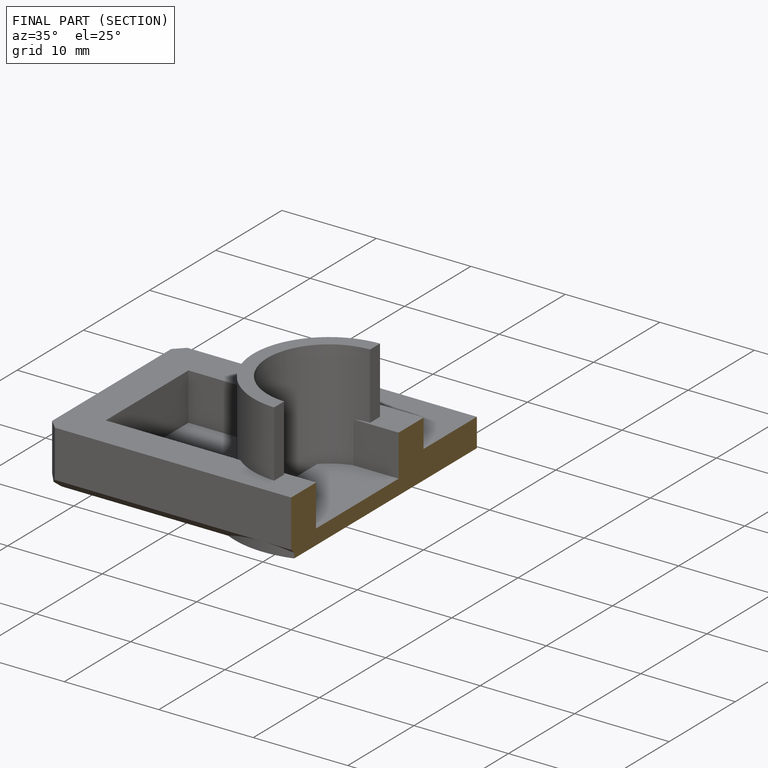
[diagram: finished part — half-section view (interior)]
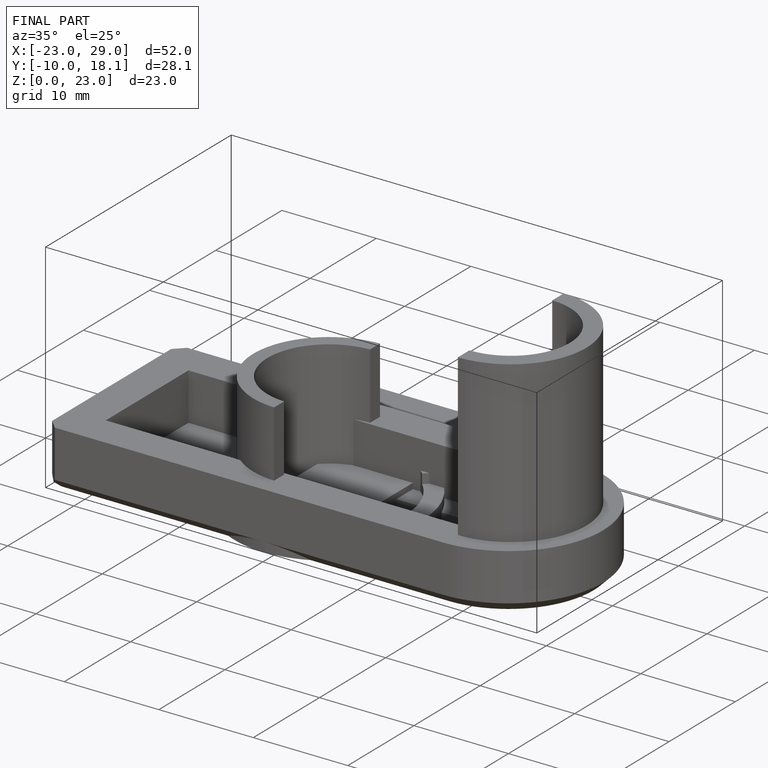
[diagram: finished part — iso view with bounding-box wireframe]
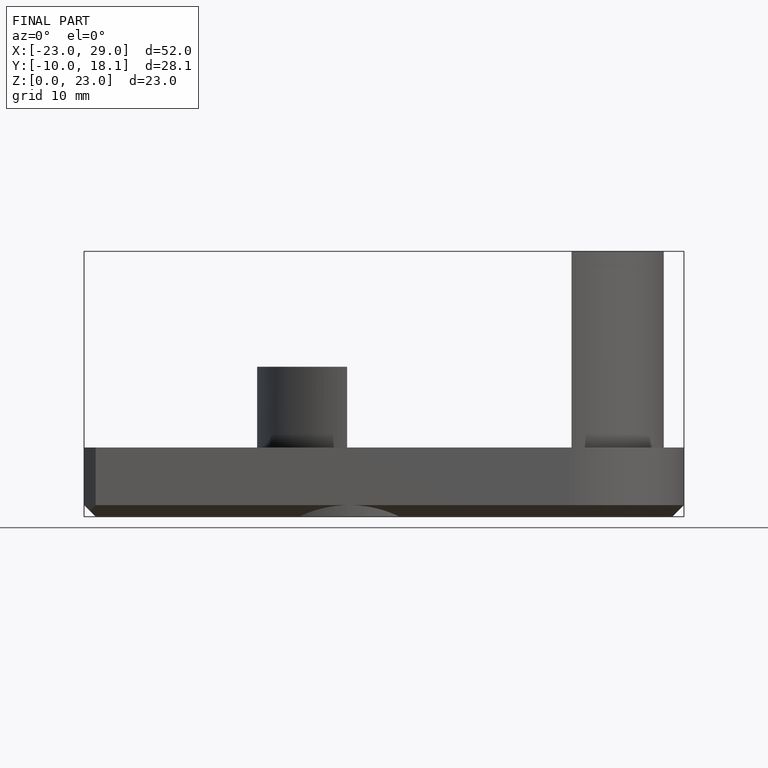
[diagram: finished part — front view with bounding-box wireframe]
